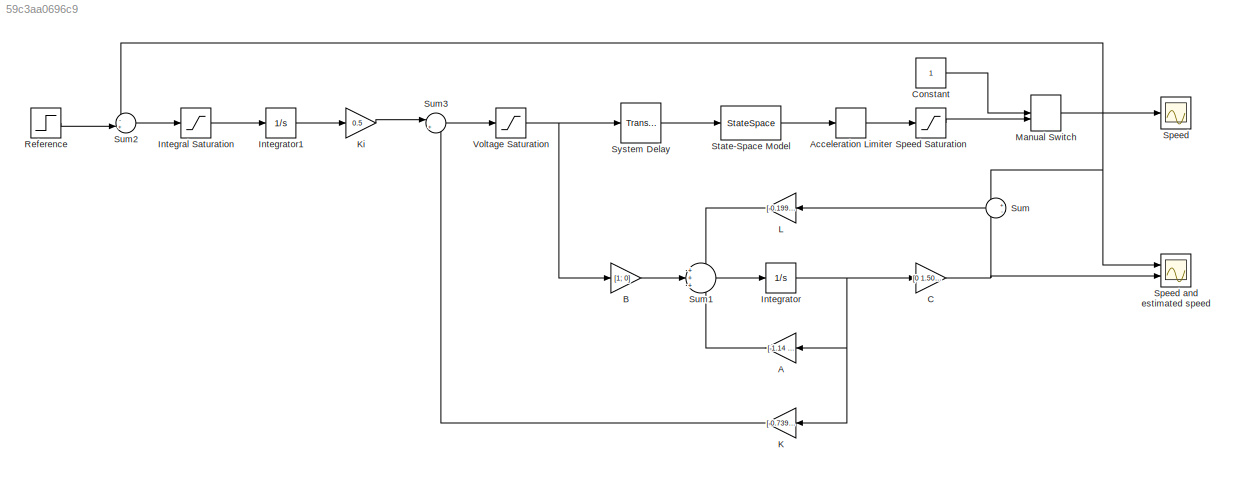
MODEL slx_59c3aa0696c9
KIND model
CONFIG AbsTol = auto
CONFIG EnableMultiTasking = off
CONFIG FixedStep = auto
CONFIG MaxStep = auto
CONFIG MinStep = auto
CONFIG RelTol = 1e-3
CONFIG SampleTimeConstraint = Unconstrained
CONFIG Solver = VariableStepAuto
CONFIG SolverName = VariableStepAuto
CONFIG StartTime = 0.0
CONFIG StopTime = 30
BLOCK [Gain] A
  Gain = [-1.14 -1.36; 1 0]
  Multiplication = Matrix(K*u)
  OutDataTypeStr = Inherit: Inherit via internal rule
  ParamDataTypeStr = Inherit: Inherit via internal rule
  SaturateOnIntegerOverflow = off
BLOCK [RateLimiter] Acceleration Limiter
  FallingSlewLimit = -0.65
  RisingSlewLimit = 0.65
  SampleTimeMode = inherited
BLOCK [Gain] B
  Gain = [1; 0]
  Multiplication = Matrix(K*u)
  OutDataTypeStr = Inherit: Inherit via internal rule
  ParamDataTypeStr = Inherit: Inherit via internal rule
  SaturateOnIntegerOverflow = off
BLOCK [Gain] C
  Gain = [0 1.507]
  Multiplication = Matrix(K*u)
  OutDataTypeStr = Inherit: Inherit via internal rule
  ParamDataTypeStr = Inherit: Inherit via internal rule
  SaturateOnIntegerOverflow = off
BLOCK [Constant] Constant
BLOCK [Saturate] Integral Saturation
  InputPortMap = u0
  LowerLimit = -5/0.5
  Ports = [1, 1]
  UpperLimit = 5/0.5
BLOCK [Integrator] Integrator
  Ports = [1, 1]
BLOCK [Integrator] Integrator1
  Ports = [1, 1]
BLOCK [Gain] K
  Gain = [-0.7393 -0.8325]
  Multiplication = Matrix(K*u)
  OutDataTypeStr = Inherit: Inherit via internal rule
  ParamDataTypeStr = Inherit: Inherit via internal rule
  SaturateOnIntegerOverflow = off
BLOCK [Gain] Ki
  Gain = 0.5
  OutDataTypeStr = Inherit: Inherit via internal rule
  ParamDataTypeStr = Inherit: Inherit via internal rule
  SaturateOnIntegerOverflow = off
BLOCK [Gain] L
  Gain = [-0.199; 0.5704]
  Multiplication = Matrix(K*u)
  OutDataTypeStr = Inherit: Inherit via internal rule
  ParamDataTypeStr = Inherit: Inherit via internal rule
  SaturateOnIntegerOverflow = off
BLOCK [ManualSwitch] Manual Switch
  CurrentSetting = 0
BLOCK [Step] Reference
  SampleTime = 0
BLOCK [Scope] Speed
  Floating = off
  NumInputPorts = 1
  Ports = [1]
  ScopeSpecificationString = Simulink.scopes.TimeScopeBlockCfg('CurrentConfiguration', extmgr.ConfigurationSet(extmgr.Configuration('Core','General UI',true),extmgr.Configuration('Core','Source UI',true),extmgr.Configuration('Sources','WiredSimulink',true,'DataLoggingVariableName','ScopeData1'),extmgr.Configuration('Visuals','Time Domain',true,'SerializedDisplays',{struct('MinYLimReal','-0.127','MaxYLimReal','1.143','YLabelRe...<+1387ch>
BLOCK [Saturate] Speed Saturation
  InputPortMap = u0
  LowerLimit = 0
  Ports = [1, 1]
  UpperLimit = 1000
BLOCK [Scope] Speed and estimated speed
  Floating = off
  NumInputPorts = 2
  Ports = [2]
  ScopeSpecificationString = Simulink.scopes.TimeScopeBlockCfg('CurrentConfiguration', extmgr.ConfigurationSet(extmgr.Configuration('Core','General UI',true),extmgr.Configuration('Core','Source UI',true),extmgr.Configuration('Sources','WiredSimulink',true),extmgr.Configuration('Visuals','Time Domain',true,'SerializedDisplays',{struct('MinYLimReal','-0.12791','MaxYLimReal','1.15118','YLabelReal','','MinYLimMag','0.00000','MaxY...<+1364ch>
BLOCK [StateSpace] State-Space Model
  A = [-1.14 -1.36; 1 0]
  B = [1; 0]
  C = [0.0 1.507]
  D = 0
  InitialCondition = 0
  Ports = [1, 1]
BLOCK [Sum] Sum
  IconShape = round
  InputSameDT = off
  Inputs = +-
  OutDataTypeStr = Inherit: Inherit via internal rule
  Ports = [2, 1]
  SaturateOnIntegerOverflow = off
BLOCK [Sum] Sum1
  IconShape = round
  InputSameDT = off
  Inputs = +++
  OutDataTypeStr = Inherit: Inherit via internal rule
  Ports = [3, 1]
  SaturateOnIntegerOverflow = off
BLOCK [Sum] Sum2
  IconShape = round
  InputSameDT = off
  Inputs = -+|
  OutDataTypeStr = Inherit: Inherit via internal rule
  Ports = [2, 1]
  SaturateOnIntegerOverflow = off
BLOCK [Sum] Sum3
  IconShape = round
  InputSameDT = off
  Inputs = |++
  OutDataTypeStr = Inherit: Inherit via internal rule
  Ports = [2, 1]
  SaturateOnIntegerOverflow = off
BLOCK [TransportDelay] System Delay
  DelayTime = 0.45
  Ports = [1, 1]
BLOCK [Saturate] Voltage Saturation
  InputPortMap = u0
  LowerLimit = 0
  Ports = [1, 1]
  UpperLimit = 5
LINE A:1 -> Sum1:3
LINE Acceleration Limiter:1 -> Speed Saturation:1
LINE B:1 -> Sum1:2
NET C:1 -> Speed and estimated speed:2, Sum:2
LINE Constant:1 -> Manual Switch:1
LINE Integral Saturation:1 -> Integrator1:1
LINE Integrator1:1 -> Ki:1
NET Integrator:1 -> A:1, C:1, K:1
LINE K:1 -> Sum3:2
LINE Ki:1 -> Sum3:1
LINE L:1 -> Sum1:1
NET Manual Switch:1 -> Speed and estimated speed:1, Speed:1, Sum2:1, Sum:1
LINE Reference:1 -> Sum2:2
LINE Speed Saturation:1 -> Manual Switch:2
LINE State-Space Model:1 -> Acceleration Limiter:1
LINE Sum1:1 -> Integrator:1
LINE Sum2:1 -> Integral Saturation:1
LINE Sum3:1 -> Voltage Saturation:1
LINE Sum:1 -> L:1
LINE System Delay:1 -> State-Space Model:1
NET Voltage Saturation:1 -> B:1, System Delay:1
note: NET lines group one-source signal fan-out (src -> all destinations, sorted); 1:1 wires keep LINE
